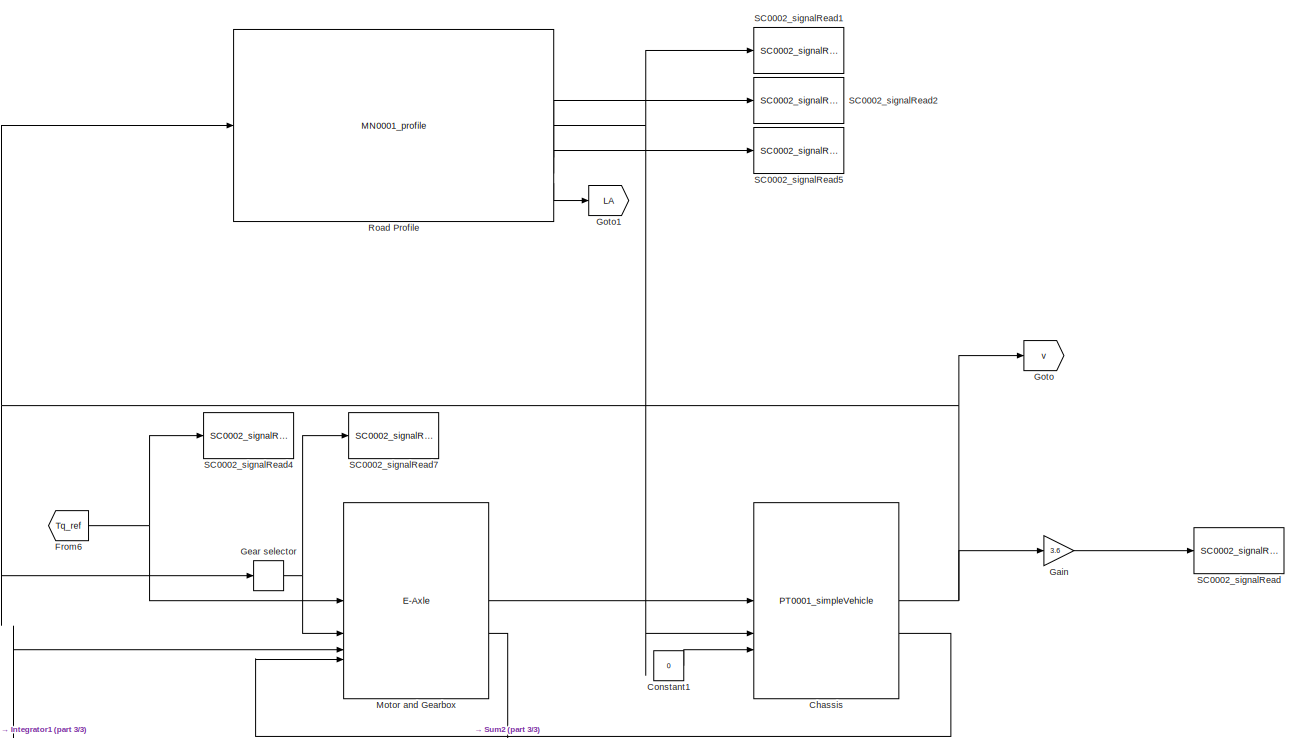
[diagram: root canvas - part 1/3, top right region]
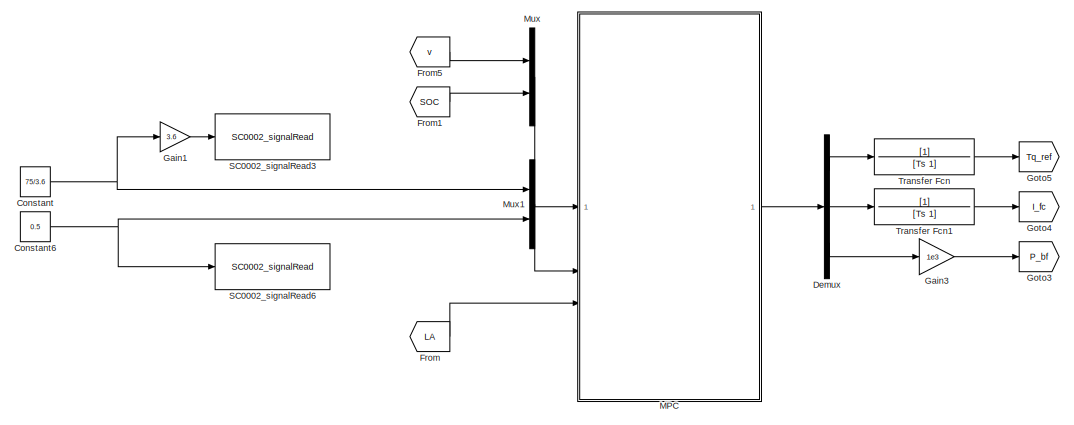
[diagram: root canvas - part 2/3, middle left region]
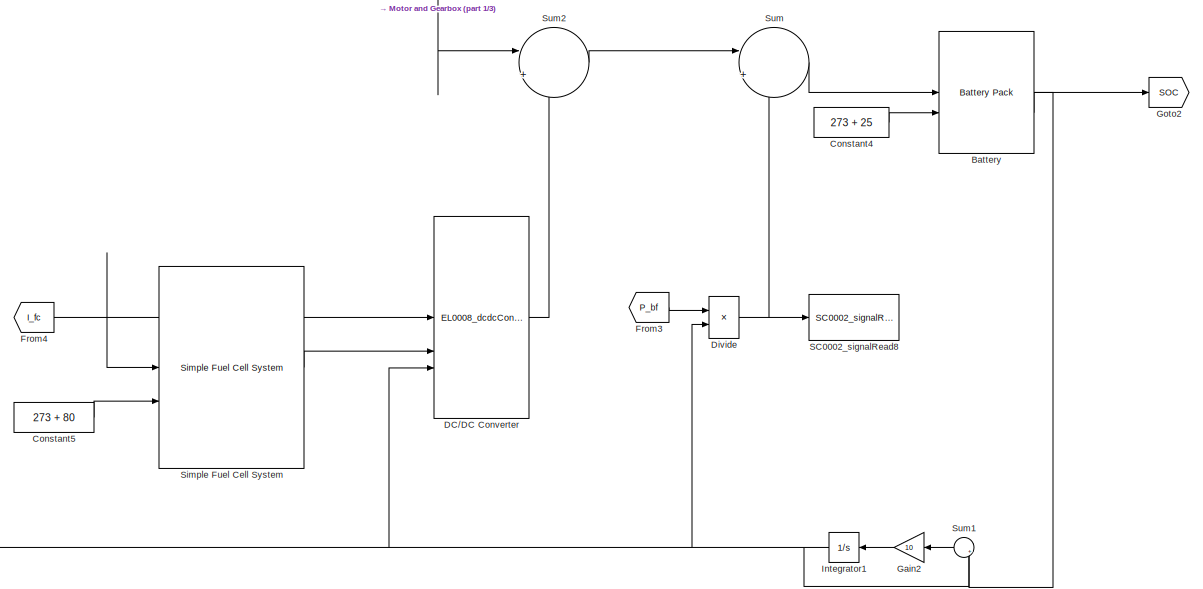
[diagram: root canvas - part 3/3, bottom right region]
MODEL slx_48ad23f30490
KIND model
CONFIG AbsTol = auto
CONFIG EnableMultiTasking = off
CONFIG FixedStep = auto
CONFIG MaxStep = 1e-1
CONFIG MinStep = auto
CONFIG RelTol = 1e-6
CONFIG SampleTimeConstraint = Unconstrained
CONFIG SolverName = ode23tb
CONFIG StartTime = 0.0
CONFIG StopTime = 20e3
BLOCK [Reference] Battery  REF=component_lib/Battery Pack  (lib defined in slx_7b23c5cf3aa6)
  SourceBlock = component_lib/Battery Pack
BLOCK [Reference] Chassis  REF=component_lib/Powertrain/PT0001_simpleVehicle  (lib defined in slx_7b23c5cf3aa6)
  SourceBlock = component_lib/Powertrain/PT0001_simpleVehicle
BLOCK [Constant] Constant
  Value = 75/3.6
BLOCK [Constant] Constant1
  Value = 0
BLOCK [Constant] Constant4
  Value = 273 + 25
BLOCK [Constant] Constant5
  Value = 273 + 80
BLOCK [Constant] Constant6
  Value = 0.5
BLOCK [Reference] DC//DC Converter  REF=component_lib/Electrochemistry/EL0008_dcdcConverter  (lib defined in slx_7b23c5cf3aa6)
  SourceBlock = component_lib/Electrochemistry/EL0008_dcdcConverter
BLOCK [Demux] Demux
  Outputs = 3
BLOCK [Product] Divide
  Inputs = */
BLOCK [From] From
  GotoTag = LA
BLOCK [From] From1
  GotoTag = SOC
BLOCK [From] From3
  GotoTag = P_bf
BLOCK [From] From4
  GotoTag = I_fc
BLOCK [From] From5
  GotoTag = v
BLOCK [From] From6
  GotoTag = Tq_ref
BLOCK [Gain] Gain
  Gain = 3.6
BLOCK [Gain] Gain1
  Gain = 3.6
BLOCK [Gain] Gain2
  Gain = 10
  NameLocation = top
BLOCK [Gain] Gain3
  Gain = 1e3
BLOCK [Relay] Gear selector
  OffOutputValue = 3
  OffSwitchValue = 10
  OnOutputValue = 4
  OnSwitchValue = 30
BLOCK [Goto] Goto
  GotoTag = v
BLOCK [Goto] Goto1
  GotoTag = LA
BLOCK [Goto] Goto2
  GotoTag = SOC
BLOCK [Goto] Goto3
  GotoTag = P_bf
BLOCK [Goto] Goto4
  GotoTag = I_fc
BLOCK [Goto] Goto5
  GotoTag = Tq_ref
BLOCK [Integrator] Integrator1
  InitialCondition = 700
  NameLocation = top
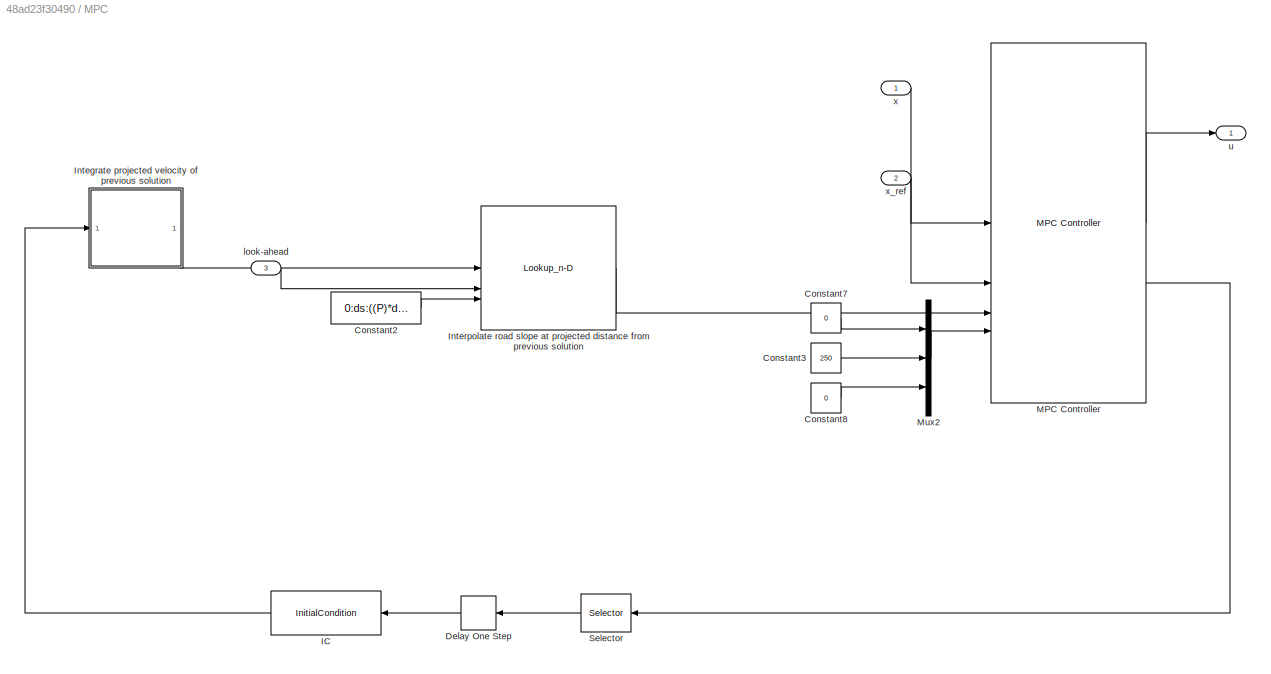
BLOCK [SubSystem] MPC
BLOCK [Constant] MPC/Constant2
  Value = 0:ds:((P)*ds-ds)
BLOCK [Constant] MPC/Constant3
  Value = 250
BLOCK [Constant] MPC/Constant7
  Value = 0
BLOCK [Constant] MPC/Constant8
  Value = 0
BLOCK [Delay] MPC/Delay One Step
  DelayLength = 1
  InputPortMap = u0
  NameLocation = top
BLOCK [InitialCondition] MPC/IC
  NameLocation = top
  Value = ones(P,1) * 75/3.6
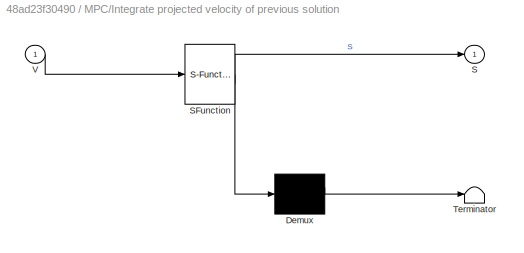
BLOCK [SubSystem] MPC/Integrate projected velocity of previous solution
  ErrorFcn = Stateflow.Translate.translate
  LibrarySourceBlock = simulink/User-Defined\nFunctions/MATLAB Function
  PermitHierarchicalResolution = ExplicitOnly
  SFBlockType = MATLAB Function
  TreatAsAtomicUnit = on
BLOCK [Demux] MPC/Integrate projected velocity of previous solution/ Demux 
  Outputs = 1
BLOCK [S-Function] MPC/Integrate projected velocity of previous solution/ SFunction 
  EnableBusSupport = on
  FunctionName = sf_sfun
  Parameters = P,Ts
  PortCounts = [1 2]
  SFcnIsStateOwnerBlock = off
  SFunctionDeploymentMode = off
  Tag = Stateflow S-Function 2
BLOCK [Terminator] MPC/Integrate projected velocity of previous solution/ Terminator 
BLOCK [Outport] MPC/Integrate projected velocity of previous solution/S
BLOCK [Inport] MPC/Integrate projected velocity of previous solution/V
BLOCK [Lookup_n-D] MPC/Interpolate road slope at projected distance from previous solution
  BreakpointsForDimension1 = [-5:5]
  BreakpointsForDimension1Source = Input port
  InputPortMap = u0,p221,p5
  InternalRulePriority = Speed
  NumberOfTableDimensions = 1
  RndMeth = Simplest
  Table = tanh([-5:5])
  TableSource = Input port
BLOCK [Reference] MPC/MPC Controller  REF=mpclib/MPC Controller  (lib defined in mdl_ae329e0e0455)
  SCDEnableBlockLinearizationSpecification = on
  SourceBlock = mpclib/MPC Controller
  SourceType = MPC
BLOCK [Mux] MPC/Mux2
  DisplayOption = bar
  Inputs = 3
BLOCK [Selector] MPC/Selector
  IndexOptions = Index vector (dialog),Index vector (dialog)
  Indices = 2:(P+1),1
  InputPortWidth = 3
  NameLocation = top
  NumberOfDimensions = 2
  OutputSizes = 1,1
BLOCK [Inport] MPC/look-ahead
  Port = 3
BLOCK [Outport] MPC/u
BLOCK [Inport] MPC/x
BLOCK [Inport] MPC/x_ref
  Port = 2
BLOCK [Reference] Motor and Gearbox  REF=component_lib/E-Axle  (lib defined in slx_7b23c5cf3aa6)
  SourceBlock = component_lib/E-Axle
BLOCK [Mux] Mux
  DisplayOption = bar
  Inputs = 2
BLOCK [Mux] Mux1
  DisplayOption = bar
  Inputs = 2
BLOCK [Reference] Road Profile  REF=component_lib/Mission/MN0001_profile  (lib defined in slx_7b23c5cf3aa6)
  SourceBlock = component_lib/Mission/MN0001_profile
BLOCK [Reference] SC0002_signalRead  REF=component_lib/Data & Control/SC0002_signalRead  (lib defined in slx_7b23c5cf3aa6)
  SourceBlock = component_lib/Data & Control/SC0002_signalRead
BLOCK [Reference] SC0002_signalRead1  REF=component_lib/Data & Control/SC0002_signalRead  (lib defined in slx_7b23c5cf3aa6)
  SourceBlock = component_lib/Data & Control/SC0002_signalRead
BLOCK [Reference] SC0002_signalRead2  REF=component_lib/Data & Control/SC0002_signalRead  (lib defined in slx_7b23c5cf3aa6)
  SourceBlock = component_lib/Data & Control/SC0002_signalRead
BLOCK [Reference] SC0002_signalRead3  REF=component_lib/Data & Control/SC0002_signalRead  (lib defined in slx_7b23c5cf3aa6)
  SourceBlock = component_lib/Data & Control/SC0002_signalRead
BLOCK [Reference] SC0002_signalRead4  REF=component_lib/Data & Control/SC0002_signalRead  (lib defined in slx_7b23c5cf3aa6)
  SourceBlock = component_lib/Data & Control/SC0002_signalRead
BLOCK [Reference] SC0002_signalRead5  REF=component_lib/Data & Control/SC0002_signalRead  (lib defined in slx_7b23c5cf3aa6)
  SourceBlock = component_lib/Data & Control/SC0002_signalRead
BLOCK [Reference] SC0002_signalRead6  REF=component_lib/Data & Control/SC0002_signalRead  (lib defined in slx_7b23c5cf3aa6)
  SourceBlock = component_lib/Data & Control/SC0002_signalRead
BLOCK [Reference] SC0002_signalRead7  REF=component_lib/Data & Control/SC0002_signalRead  (lib defined in slx_7b23c5cf3aa6)
  SourceBlock = component_lib/Data & Control/SC0002_signalRead
BLOCK [Reference] SC0002_signalRead8  REF=component_lib/Data & Control/SC0002_signalRead  (lib defined in slx_7b23c5cf3aa6)
  SourceBlock = component_lib/Data & Control/SC0002_signalRead
BLOCK [Reference] Simple Fuel Cell System  REF=component_lib/Simple Fuel Cell System  (lib defined in slx_7b23c5cf3aa6)
  SourceBlock = component_lib/Simple Fuel Cell System
BLOCK [Sum] Sum
  Inputs = |++
BLOCK [Sum] Sum1
  Inputs = |+-
  NameLocation = top
BLOCK [Sum] Sum2
  Inputs = |+-
BLOCK [TransferFcn] Transfer Fcn
  Denominator = [Ts 1]
BLOCK [TransferFcn] Transfer Fcn1
  Denominator = [Ts 1]
LINE Battery:1 -> Sum1:1
LINE Battery:2 -> Goto2:1
NET Chassis:1 -> Gain:1, Gear selector:1, Goto:1, Road Profile:1
LINE Chassis:2 -> Motor and Gearbox:4
LINE Constant1:1 -> Chassis:3
LINE Constant4:1 -> Battery:2
LINE Constant5:1 -> Simple Fuel Cell System:2
NET Constant6:1 -> Mux1:2, SC0002_signalRead6:1
NET Constant:1 -> Gain1:1, Mux1:1
LINE DC//DC Converter:1 -> Sum2:2
LINE Demux:1 -> Transfer Fcn:1
LINE Demux:2 -> Transfer Fcn1:1
LINE Demux:3 -> Gain3:1
NET Divide:1 -> SC0002_signalRead8:1, Sum:2
LINE From1:1 -> Mux:2
LINE From3:1 -> Divide:1
NET From4:1 -> DC//DC Converter:1, Simple Fuel Cell System:1
LINE From5:1 -> Mux:1
NET From6:1 -> Motor and Gearbox:1, SC0002_signalRead4:1
LINE From:1 -> MPC:3
LINE Gain1:1 -> SC0002_signalRead3:1
LINE Gain2:1 -> Integrator1:1
LINE Gain3:1 -> Goto3:1
LINE Gain:1 -> SC0002_signalRead:1
NET Gear selector:1 -> Motor and Gearbox:2, SC0002_signalRead7:1
NET Integrator1:1 -> DC//DC Converter:3, Divide:2, Motor and Gearbox:3, Sum1:2
LINE MPC/Constant2:1 -> MPC/Interpolate road slope at projected distance from previous solution:3
LINE MPC/Constant3:1 -> MPC/Mux2:2
LINE MPC/Constant7:1 -> MPC/Mux2:1
LINE MPC/Constant8:1 -> MPC/Mux2:3
LINE MPC/Delay One Step:1 -> MPC/IC:1
LINE MPC/IC:1 -> MPC/Integrate projected velocity of previous solution:1
LINE MPC/Integrate projected velocity of previous solution:1 -> MPC/Interpolate road slope at projected distance from previous solution:1
LINE MPC/Interpolate road slope at projected distance from previous solution:1 -> MPC/MPC Controller:3
LINE MPC/MPC Controller:1 -> MPC/u:1
LINE MPC/MPC Controller:2 -> MPC/Selector:1
LINE MPC/Mux2:1 -> MPC/MPC Controller:4
LINE MPC/Selector:1 -> MPC/Delay One Step:1
LINE MPC/look-ahead:1 -> MPC/Interpolate road slope at projected distance from previous solution:2
LINE MPC/x:1 -> MPC/MPC Controller:1
LINE MPC/x_ref:1 -> MPC/MPC Controller:2
LINE MPC:1 -> Demux:1
LINE Motor and Gearbox:1 -> Chassis:1
LINE Motor and Gearbox:2 -> Sum2:1
LINE Mux1:1 -> MPC:2
LINE Mux:1 -> MPC:1
NET Road Profile:1 -> Chassis:2, SC0002_signalRead1:1
LINE Road Profile:2 -> SC0002_signalRead2:1
LINE Road Profile:3 -> SC0002_signalRead5:1
LINE Road Profile:4 -> Goto1:1
LINE Simple Fuel Cell System:1 -> DC//DC Converter:2
LINE Sum1:1 -> Gain2:1
LINE Sum2:1 -> Sum:1
LINE Sum:1 -> Battery:1
LINE Transfer Fcn1:1 -> Goto4:1
LINE Transfer Fcn:1 -> Goto5:1
note: NET lines group one-source signal fan-out (src -> all destinations, sorted); 1:1 wires keep LINE
CHART MPC/Integrate projected velocity
of previous solution states=1 transitions=1
  STATE_LABEL 'eML_blk_kernel()'
  STATE_LABEL 'SCRIPT:\nfunction S = fcn(V, P, Ts)\n\nS = cumtrapz( (0:(P-1)) .* Ts, V);\n\n'
CHART  states=0 transitions=0
